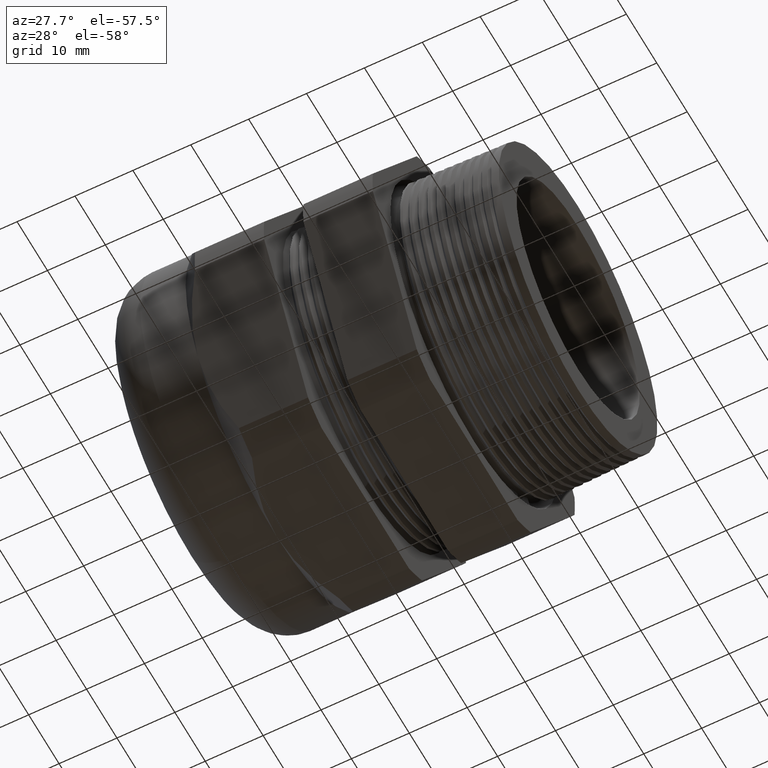
[diagram: clean part render]
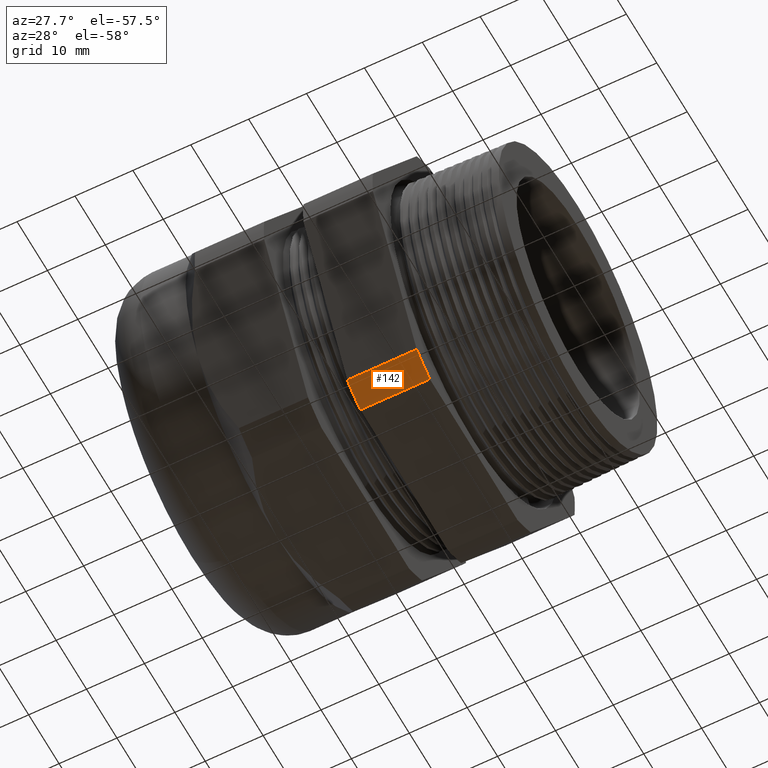
[diagram: same view with one face highlighted and labeled with its STEP entity id]
A machine part, auxiliary view. The second image highlights one B-rep face of the part: STEP entity #142.
In plain terms, the highlighted cylindrical surface (partial cylindrical patch) has radius 33.2689 mm, axis along (-1, 0, 0).
Its self-contained STEP definition (entity closure, byte-faithful):
#7 = VERTEX_POINT ( 'NONE', #573 ) ;
#15 = EDGE_CURVE ( 'NONE', #4140, #7, #571, .T. ) ;
#35 = ORIENTED_EDGE ( 'NONE', *, *, #15, .F. ) ;
#37 = EDGE_CURVE ( 'NONE', #4152, #43, #606, .T. ) ;
#39 = ORIENTED_EDGE ( 'NONE', *, *, #42, .F. ) ;
#40 = ORIENTED_EDGE ( 'NONE', *, *, #37, .T. ) ;
#41 = ORIENTED_EDGE ( 'NONE', *, *, #4143, .F. ) ;
#42 = EDGE_CURVE ( 'NONE', #7, #43, #596, .T. ) ;
#43 = VERTEX_POINT ( 'NONE', #591 ) ;
#139 = EDGE_LOOP ( 'NONE', ( #35, #41, #40, #39 ) ) ;
#142 = ADVANCED_FACE ( 'NONE', ( #830 ), #829, .T. ) ;
#568 = DIRECTION ( 'NONE',  ( -1.000000000000000000, 0.0000000000000000000, 0.0000000000000000000 ) ) ;
#569 = VECTOR ( 'NONE', #568, 39.37007874015748100 ) ;
#570 = CARTESIAN_POINT ( 'NONE',  ( 0.4000000000000000800, -0.5684857430050462800, -1.180000000000000200 ) ) ;
#571 = LINE ( 'NONE', #570, #569 ) ;
#573 = CARTESIAN_POINT ( 'NONE',  ( -0.7824400000000001400, -0.5684857430050462800, -1.180000000000000200 ) ) ;
#591 = CARTESIAN_POINT ( 'NONE',  ( -0.7824400000000001400, -0.7376671049631138300, -1.082323095131642500 ) ) ;
#592 = DIRECTION ( 'NONE',  ( 0.0000000000000000000, 0.0000000000000000000, 1.000000000000000000 ) ) ;
#593 = DIRECTION ( 'NONE',  ( -1.000000000000000000, 0.0000000000000000000, 0.0000000000000000000 ) ) ;
#594 = CARTESIAN_POINT ( 'NONE',  ( -0.7824400000000001400, 0.0000000000000000000, 0.0000000000000000000 ) ) ;
#595 = AXIS2_PLACEMENT_3D ( 'NONE', #594, #593, #592 ) ;
#596 = CIRCLE ( 'NONE', #595, 1.309800000000000100 ) ;
#603 = DIRECTION ( 'NONE',  ( -1.000000000000000000, 0.0000000000000000000, 0.0000000000000000000 ) ) ;
#604 = VECTOR ( 'NONE', #603, 39.37007874015748100 ) ;
#605 = CARTESIAN_POINT ( 'NONE',  ( 0.4000000000000000800, -0.7376671049631138300, -1.082323095131642500 ) ) ;
#606 = LINE ( 'NONE', #605, #604 ) ;
#824 = DIRECTION ( 'NONE',  ( 0.0000000000000000000, 0.0000000000000000000, 1.000000000000000000 ) ) ;
#825 = DIRECTION ( 'NONE',  ( -1.000000000000000000, 0.0000000000000000000, 0.0000000000000000000 ) ) ;
#826 = CARTESIAN_POINT ( 'NONE',  ( 0.4000000000000000800, 0.0000000000000000000, 0.0000000000000000000 ) ) ;
#827 = AXIS2_PLACEMENT_3D ( 'NONE', #826, #825, #824 ) ;
#829 = CYLINDRICAL_SURFACE ( 'NONE', #827, 1.309800000000000100 ) ;
#830 = FACE_OUTER_BOUND ( 'NONE', #139, .T. ) ;
#3630 = AXIS2_PLACEMENT_3D ( 'NONE', #3636, #3689, #3688 ) ;
#3631 = CIRCLE ( 'NONE', #3630, 1.309800000000000100 ) ;
#3636 = CARTESIAN_POINT ( 'NONE',  ( -0.3100000000000000000, 0.0000000000000000000, 0.0000000000000000000 ) ) ;
#3639 = CARTESIAN_POINT ( 'NONE',  ( -0.3100000000000000000, -0.5684857430050462800, -1.180000000000000200 ) ) ;
#3672 = CARTESIAN_POINT ( 'NONE',  ( -0.3100000000000000000, -0.7376671049631138300, -1.082323095131642500 ) ) ;
#3688 = DIRECTION ( 'NONE',  ( 0.0000000000000000000, 0.0000000000000000000, -1.000000000000000000 ) ) ;
#3689 = DIRECTION ( 'NONE',  ( 1.000000000000000000, 0.0000000000000000000, 0.0000000000000000000 ) ) ;
#4140 = VERTEX_POINT ( 'NONE', #3639 ) ;
#4143 = EDGE_CURVE ( 'NONE', #4152, #4140, #3631, .T. ) ;
#4152 = VERTEX_POINT ( 'NONE', #3672 ) ;